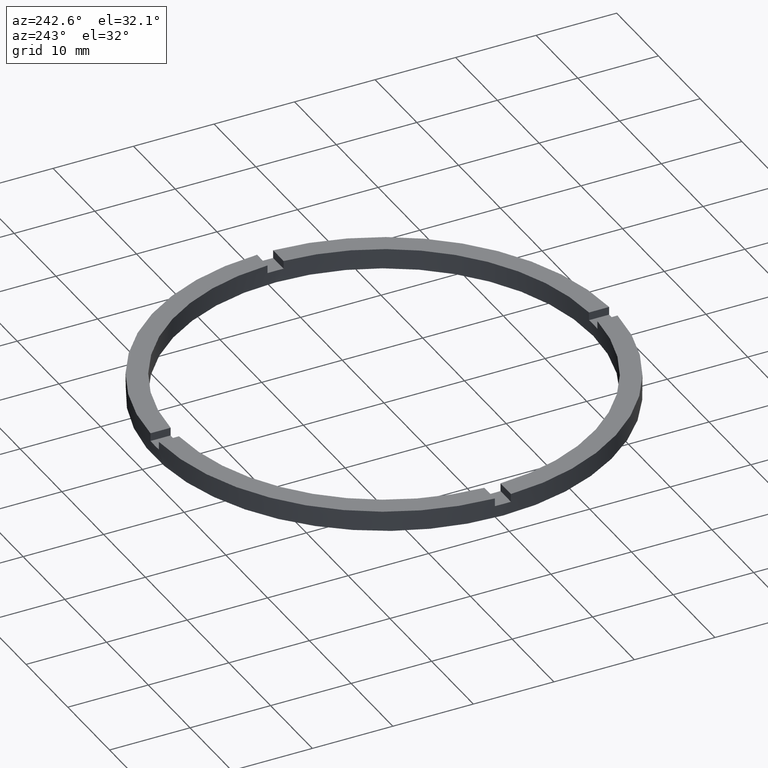
[diagram: clean part render]
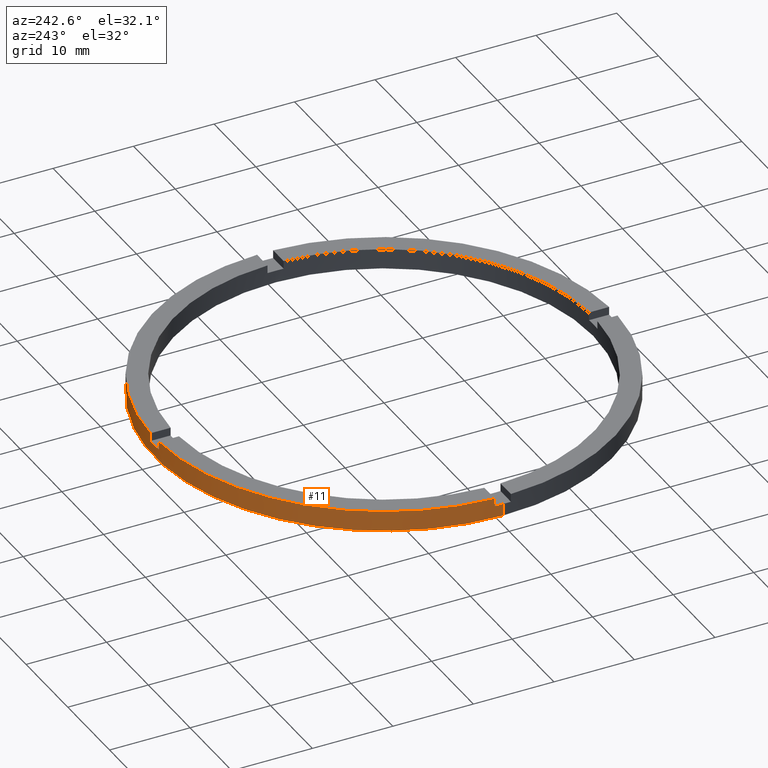
[diagram: same view with one face highlighted and labeled with its STEP entity id]
A machine part, auxiliary view. The second image highlights one B-rep face of the part: STEP entity #11.
In plain terms, the highlighted cylindrical surface (partial cylindrical patch) has radius 28.5 mm, axis along (-0, -0, -1).
Its self-contained STEP definition (entity closure, byte-faithful):
#2 = EDGE_CURVE ( 'NONE', #60, #546, #38, .T. ) ;
#11 = ADVANCED_FACE ( 'NONE', ( #47 ), #48, .T. ) ;
#20 = DIRECTION ( 'NONE',  ( 1.000000000000000000, 0.000000000000000000, 0.000000000000000000 ) ) ;
#25 = CARTESIAN_POINT ( 'NONE',  ( 0.000000000000000000, 0.000000000000000000, 1.500000000000000000 ) ) ;
#35 = VECTOR ( 'NONE', #601, 1000.000000000000000 ) ;
#38 = LINE ( 'NONE', #412, #35 ) ;
#42 = CARTESIAN_POINT ( 'NONE',  ( 0.000000000000000000, 0.000000000000000000, 2.500000000000000000 ) ) ;
#44 = DIRECTION ( 'NONE',  ( -0.000000000000000000, -0.000000000000000000, -1.000000000000000000 ) ) ;
#47 = FACE_OUTER_BOUND ( 'NONE', #55, .T. ) ;
#48 = CYLINDRICAL_SURFACE ( 'NONE', #630, 28.50000000000000000 ) ;
#55 = EDGE_LOOP ( 'NONE', ( #333, #619, #772, #599, #72, #91, #294, #591, #338, #79, #603, #777 ) ) ;
#60 = VERTEX_POINT ( 'NONE', #711 ) ;
#62 = CARTESIAN_POINT ( 'NONE',  ( -28.48245073725223264, 0.9999999999999729106, 2.500000000000000000 ) ) ;
#72 = ORIENTED_EDGE ( 'NONE', *, *, #504, .F. ) ;
#77 = CARTESIAN_POINT ( 'NONE',  ( 0.9999999999999735767, 28.48245073725223264, 2.500000000000000000 ) ) ;
#79 = ORIENTED_EDGE ( 'NONE', *, *, #693, .T. ) ;
#83 = DIRECTION ( 'NONE',  ( -0.000000000000000000, -0.000000000000000000, -1.000000000000000000 ) ) ;
#91 = ORIENTED_EDGE ( 'NONE', *, *, #192, .T. ) ;
#118 = CARTESIAN_POINT ( 'NONE',  ( -1.000000000000026423, 28.48245073725222909, 1.500000000000000000 ) ) ;
#121 = CARTESIAN_POINT ( 'NONE',  ( 0.000000000000000000, 0.000000000000000000, 2.500000000000000000 ) ) ;
#124 = CARTESIAN_POINT ( 'NONE',  ( 0.000000000000000000, 0.000000000000000000, 0.000000000000000000 ) ) ;
#126 = VECTOR ( 'NONE', #44, 1000.000000000000000 ) ;
#147 = VECTOR ( 'NONE', #297, 1000.000000000000000 ) ;
#165 = LINE ( 'NONE', #722, #432 ) ;
#168 = DIRECTION ( 'NONE',  ( 0.000000000000000000, -0.000000000000000000, 1.000000000000000000 ) ) ;
#171 = CIRCLE ( 'NONE', #337, 28.50000000000000000 ) ;
#182 = AXIS2_PLACEMENT_3D ( 'NONE', #433, #781, #659 ) ;
#185 = CARTESIAN_POINT ( 'NONE',  ( 28.50000000000000000, 3.490243377569956456E-15, 1.500000000000000000 ) ) ;
#192 = EDGE_CURVE ( 'NONE', #744, #616, #390, .T. ) ;
#247 = DIRECTION ( 'NONE',  ( -0.000000000000000000, -0.000000000000000000, -1.000000000000000000 ) ) ;
#249 = CARTESIAN_POINT ( 'NONE',  ( -28.48245073725223264, 0.9999999999999729106, 1.500000000000000000 ) ) ;
#269 = CARTESIAN_POINT ( 'NONE',  ( -1.000000000000026423, 28.48245073725222909, 2.500000000000000000 ) ) ;
#288 = VERTEX_POINT ( 'NONE', #77 ) ;
#294 = ORIENTED_EDGE ( 'NONE', *, *, #678, .F. ) ;
#297 = DIRECTION ( 'NONE',  ( 0.000000000000000000, 0.000000000000000000, 1.000000000000000000 ) ) ;
#300 = AXIS2_PLACEMENT_3D ( 'NONE', #124, #741, #502 ) ;
#322 = CARTESIAN_POINT ( 'NONE',  ( 28.50000000000000000, 3.490243377569956456E-15, 0.000000000000000000 ) ) ;
#333 = ORIENTED_EDGE ( 'NONE', *, *, #645, .F. ) ;
#337 = AXIS2_PLACEMENT_3D ( 'NONE', #42, #580, #729 ) ;
#338 = ORIENTED_EDGE ( 'NONE', *, *, #353, .F. ) ;
#353 = EDGE_CURVE ( 'NONE', #581, #728, #679, .T. ) ;
#365 = DIRECTION ( 'NONE',  ( -1.000000000000000000, 0.000000000000000000, 0.000000000000000000 ) ) ;
#366 = EDGE_CURVE ( 'NONE', #464, #728, #657, .T. ) ;
#385 = EDGE_CURVE ( 'NONE', #482, #288, #660, .T. ) ;
#388 = CARTESIAN_POINT ( 'NONE',  ( 0.9999999999999735767, 28.48245073725223264, 1.500000000000000000 ) ) ;
#390 = LINE ( 'NONE', #62, #147 ) ;
#391 = CIRCLE ( 'NONE', #521, 28.50000000000000000 ) ;
#399 = VECTOR ( 'NONE', #571, 1000.000000000000000 ) ;
#408 = CARTESIAN_POINT ( 'NONE',  ( -28.50000000000000000, 0.000000000000000000, 0.000000000000000000 ) ) ;
#412 = CARTESIAN_POINT ( 'NONE',  ( -28.50000000000000000, 0.000000000000000000, 2.500000000000000000 ) ) ;
#422 = DIRECTION ( 'NONE',  ( 0.000000000000000000, 0.000000000000000000, 1.000000000000000000 ) ) ;
#424 = EDGE_CURVE ( 'NONE', #482, #607, #685, .T. ) ;
#427 = DIRECTION ( 'NONE',  ( 1.000000000000000000, 0.000000000000000000, 0.000000000000000000 ) ) ;
#428 = CIRCLE ( 'NONE', #430, 28.50000000000000000 ) ;
#429 = VECTOR ( 'NONE', #535, 1000.000000000000000 ) ;
#430 = AXIS2_PLACEMENT_3D ( 'NONE', #738, #422, #531 ) ;
#432 = VECTOR ( 'NONE', #83, 1000.000000000000000 ) ;
#433 = CARTESIAN_POINT ( 'NONE',  ( 0.000000000000000000, 0.000000000000000000, 2.500000000000000000 ) ) ;
#434 = CIRCLE ( 'NONE', #300, 28.50000000000000000 ) ;
#440 = LINE ( 'NONE', #495, #429 ) ;
#464 = VERTEX_POINT ( 'NONE', #583 ) ;
#482 = VERTEX_POINT ( 'NONE', #681 ) ;
#493 = CARTESIAN_POINT ( 'NONE',  ( 28.48245073725223264, 0.9999999999998432365, 2.500000000000000000 ) ) ;
#495 = CARTESIAN_POINT ( 'NONE',  ( 0.9999999999999735767, 28.48245073725223264, 2.500000000000000000 ) ) ;
#502 = DIRECTION ( 'NONE',  ( 1.000000000000000000, 0.000000000000000000, 0.000000000000000000 ) ) ;
#504 = EDGE_CURVE ( 'NONE', #744, #60, #391, .T. ) ;
#514 = EDGE_CURVE ( 'NONE', #632, #604, #165, .T. ) ;
#521 = AXIS2_PLACEMENT_3D ( 'NONE', #592, #740, #427 ) ;
#531 = DIRECTION ( 'NONE',  ( 1.000000000000000000, 0.000000000000000000, 0.000000000000000000 ) ) ;
#535 = DIRECTION ( 'NONE',  ( 0.000000000000000000, 0.000000000000000000, 1.000000000000000000 ) ) ;
#546 = VERTEX_POINT ( 'NONE', #408 ) ;
#571 = DIRECTION ( 'NONE',  ( -0.000000000000000000, -0.000000000000000000, -1.000000000000000000 ) ) ;
#580 = DIRECTION ( 'NONE',  ( 0.000000000000000000, 0.000000000000000000, 1.000000000000000000 ) ) ;
#581 = VERTEX_POINT ( 'NONE', #388 ) ;
#583 = CARTESIAN_POINT ( 'NONE',  ( -1.000000000000026423, 28.48245073725222909, 2.500000000000000000 ) ) ;
#591 = ORIENTED_EDGE ( 'NONE', *, *, #366, .T. ) ;
#592 = CARTESIAN_POINT ( 'NONE',  ( 0.000000000000000000, 0.000000000000000000, 1.500000000000000000 ) ) ;
#599 = ORIENTED_EDGE ( 'NONE', *, *, #2, .F. ) ;
#601 = DIRECTION ( 'NONE',  ( -0.000000000000000000, -0.000000000000000000, -1.000000000000000000 ) ) ;
#603 = ORIENTED_EDGE ( 'NONE', *, *, #385, .F. ) ;
#604 = VERTEX_POINT ( 'NONE', #322 ) ;
#607 = VERTEX_POINT ( 'NONE', #639 ) ;
#616 = VERTEX_POINT ( 'NONE', #701 ) ;
#619 = ORIENTED_EDGE ( 'NONE', *, *, #514, .T. ) ;
#630 = AXIS2_PLACEMENT_3D ( 'NONE', #121, #247, #365 ) ;
#632 = VERTEX_POINT ( 'NONE', #185 ) ;
#639 = CARTESIAN_POINT ( 'NONE',  ( 28.48245073725223264, 0.9999999999998432365, 1.500000000000000000 ) ) ;
#645 = EDGE_CURVE ( 'NONE', #632, #607, #428, .T. ) ;
#657 = LINE ( 'NONE', #269, #399 ) ;
#659 = DIRECTION ( 'NONE',  ( 1.000000000000000000, 0.000000000000000000, 0.000000000000000000 ) ) ;
#660 = CIRCLE ( 'NONE', #182, 28.50000000000000000 ) ;
#678 = EDGE_CURVE ( 'NONE', #464, #616, #171, .T. ) ;
#679 = CIRCLE ( 'NONE', #684, 28.50000000000000000 ) ;
#681 = CARTESIAN_POINT ( 'NONE',  ( 28.48245073725223264, 0.9999999999998432365, 2.500000000000000000 ) ) ;
#684 = AXIS2_PLACEMENT_3D ( 'NONE', #25, #168, #20 ) ;
#685 = LINE ( 'NONE', #493, #126 ) ;
#693 = EDGE_CURVE ( 'NONE', #581, #288, #440, .T. ) ;
#701 = CARTESIAN_POINT ( 'NONE',  ( -28.48245073725223264, 0.9999999999999729106, 2.500000000000000000 ) ) ;
#710 = EDGE_CURVE ( 'NONE', #604, #546, #434, .T. ) ;
#711 = CARTESIAN_POINT ( 'NONE',  ( -28.50000000000000000, 0.000000000000000000, 1.500000000000000000 ) ) ;
#722 = CARTESIAN_POINT ( 'NONE',  ( 28.50000000000000000, 3.490243377569956456E-15, 2.500000000000000000 ) ) ;
#728 = VERTEX_POINT ( 'NONE', #118 ) ;
#729 = DIRECTION ( 'NONE',  ( 1.000000000000000000, 0.000000000000000000, 0.000000000000000000 ) ) ;
#738 = CARTESIAN_POINT ( 'NONE',  ( 0.000000000000000000, 0.000000000000000000, 1.500000000000000000 ) ) ;
#740 = DIRECTION ( 'NONE',  ( 0.000000000000000000, 0.000000000000000000, 1.000000000000000000 ) ) ;
#741 = DIRECTION ( 'NONE',  ( 0.000000000000000000, 0.000000000000000000, 1.000000000000000000 ) ) ;
#744 = VERTEX_POINT ( 'NONE', #249 ) ;
#772 = ORIENTED_EDGE ( 'NONE', *, *, #710, .T. ) ;
#777 = ORIENTED_EDGE ( 'NONE', *, *, #424, .T. ) ;
#781 = DIRECTION ( 'NONE',  ( 0.000000000000000000, 0.000000000000000000, 1.000000000000000000 ) ) ;